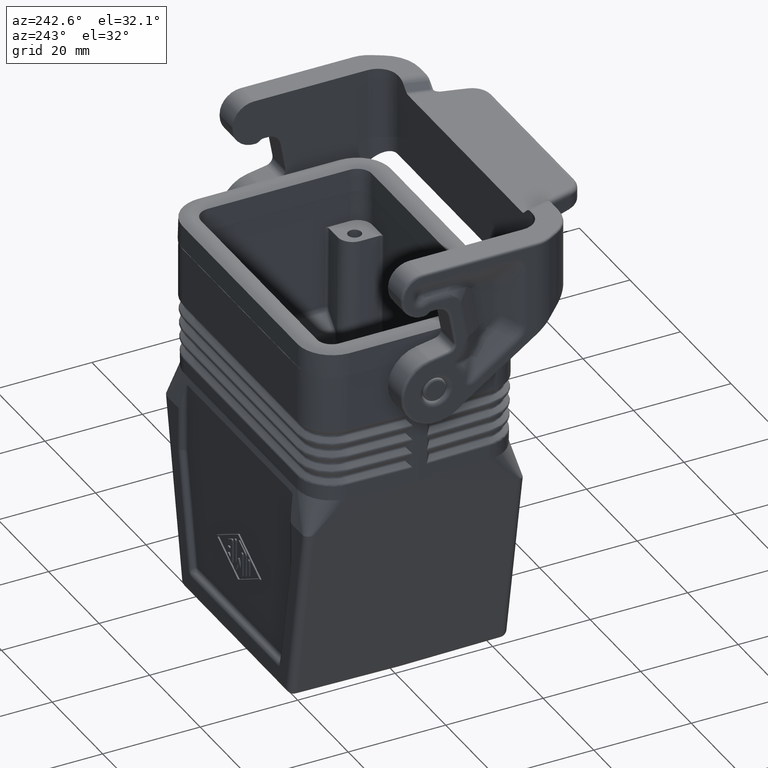
[diagram: clean part render]
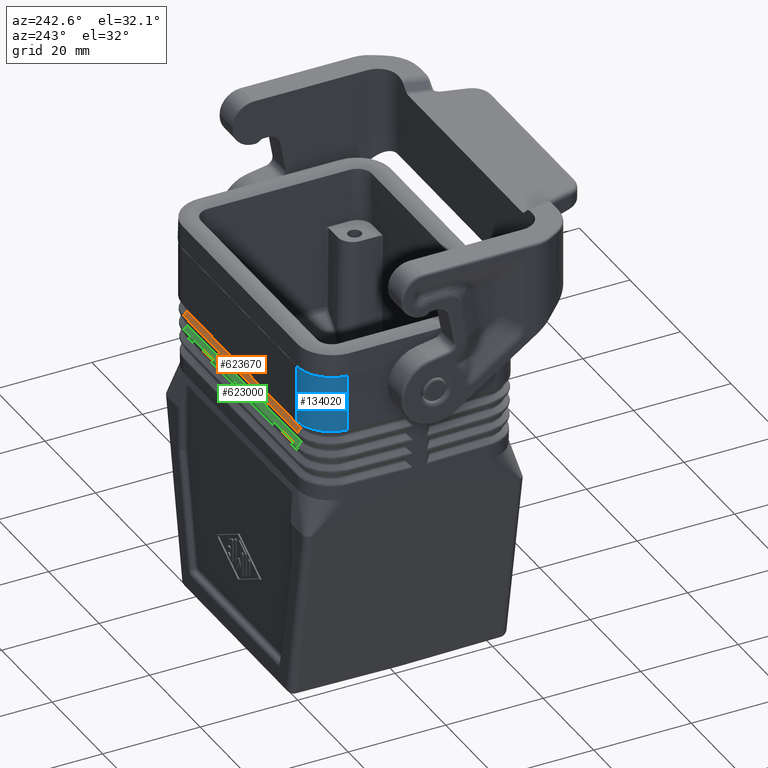
[diagram: same view with three faces highlighted in distinct colors, each labeled with its STEP entity id]
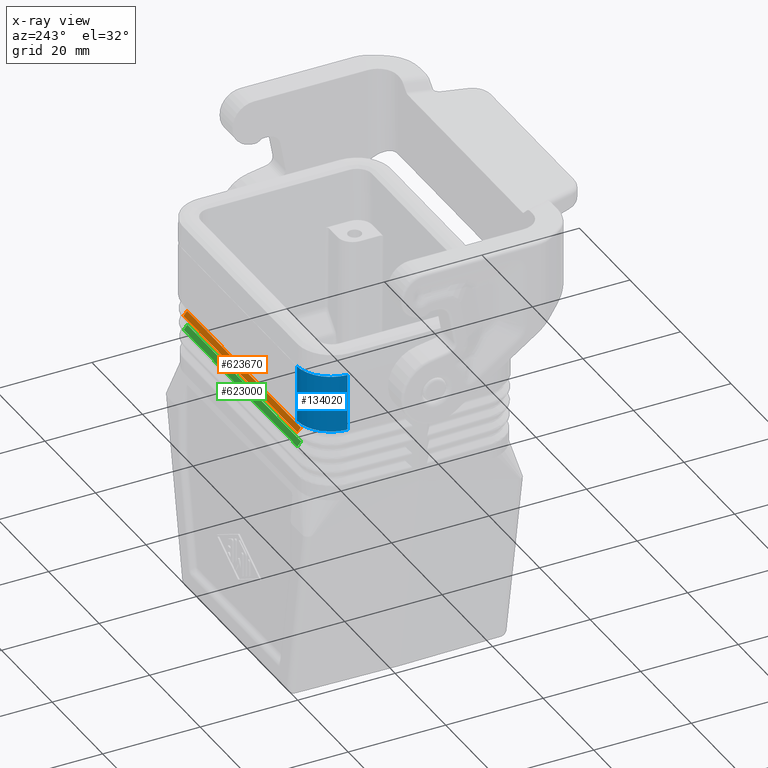
[diagram: x-ray of the same camera — body ghosted, the three highlighted faces saturated]
A machine part, auxiliary view with three faces highlighted in distinct colors.
The next image is the same camera in x-ray (body ghosted, the three faces saturated) — at least one of them is partly hidden behind the body in this view.
Their STEP definitions:

[orange] entity #623670 — the highlighted planar face has unit normal (0, 0.7569, 0.6536).
#93150=CARTESIAN_POINT('',(28.778833089458,72.8273900275017,
13.8268282147115));
#93160=VERTEX_POINT('',#93150);
#120430=CARTESIAN_POINT('',(28.0480229843983,72.8273900275017,
14.6731717852885));
#120440=VERTEX_POINT('',#120430);
#120960=CARTESIAN_POINT('',(28.778833089458,72.8273900275017,
13.8268282147115));
#120970=DIRECTION('',(-0.653556874382687,0.,0.756877408796915));
#120980=VECTOR('',#120970,1.);
#120990=LINE('',#120960,#120980);
#121000=EDGE_CURVE('',#93160,#120440,#120990,.T.);
#197290=CARTESIAN_POINT('',(28.778833089458,27.7926099724983,
13.8268282147115));
#197300=VERTEX_POINT('',#197290);
#252830=CARTESIAN_POINT('',(28.0480229843983,27.7926099724983,
14.6731717852885));
#252840=VERTEX_POINT('',#252830);
#263340=CARTESIAN_POINT('',(28.778833089458,27.7926099724983,
13.8268282147115));
#263350=DIRECTION('',(-0.653556874382687,2.62594601895301E-16,
0.756877408796915));
#263360=VECTOR('',#263350,1.);
#263370=LINE('',#263340,#263360);
#263380=EDGE_CURVE('',#197300,#252840,#263370,.T.);
#622490=CARTESIAN_POINT('',(28.778833089458,50.31,13.8268282147115));
#622500=DIRECTION('',(0.,1.,0.));
#622510=VECTOR('',#622500,1.);
#622520=LINE('',#622490,#622510);
#622530=EDGE_CURVE('',#197300,#93160,#622520,.T.);
#623510=CARTESIAN_POINT('',(28.0480229843983,50.31,14.6731717852885));
#623520=DIRECTION('',(-0.756877408796915,-0.,-0.653556874382687));
#623530=DIRECTION('',(0.653556874382687,0.,-0.756877408796915));
#623540=AXIS2_PLACEMENT_3D('',#623510,#623520,#623530);
#623550=PLANE('',#623540);
#623560=ORIENTED_EDGE('',*,*,#263380,.T.);
#623570=ORIENTED_EDGE('',*,*,#622530,.F.);
#623580=ORIENTED_EDGE('',*,*,#121000,.F.);
#623590=CARTESIAN_POINT('',(28.0480229843983,50.31,14.6731717852885));
#623600=DIRECTION('',(0.,1.,0.));
#623610=VECTOR('',#623600,1.);
#623620=LINE('',#623590,#623610);
#623630=EDGE_CURVE('',#252840,#120440,#623620,.T.);
#623640=ORIENTED_EDGE('',*,*,#623630,.T.);
#623650=EDGE_LOOP('',(#623640,#623580,#623570,#623560));
#623660=FACE_OUTER_BOUND('',#623650,.T.);
#623670=ADVANCED_FACE('',(#623660),#623550,.T.);

[blue] entity #134020 — the highlighted cylindrical surface (partial cylindrical patch) has radius 7 mm, axis along (-0, 0, -1).
#79110=CARTESIAN_POINT('',(34.875144273125,72.9268080158617,12.));
#79120=DIRECTION('',(0.017449886495949,-0.0169928755317915,
0.999703327814027));
#79130=DIRECTION('',(-0.999847695156391,0.,0.0174524064372835));
#79140=AXIS2_PLACEMENT_3D('',#79110,#79120,#79130);
#79150=CYLINDRICAL_SURFACE('',#79140,7.);
#82450=CARTESIAN_POINT('',(49.3740779768177,80.31,12.));
#82460=DIRECTION('',(0.0261769483078731,-0.999505072323015,
-0.017446425933481));
#82470=DIRECTION('',(5.42101086242752E-20,0.0174524064372835,
-0.999847695156391));
#82480=AXIS2_PLACEMENT_3D('',#82450,#82460,#82470);
#82490=PLANE('',#82480);
#83290=CARTESIAN_POINT('',(34.6897154525482,79.92547634433,
11.9966494878841));
#83300=VERTEX_POINT('',#83290);
#83330=CARTESIAN_POINT('',(34.8740779768177,72.9279045898107,0.));
#83340=DIRECTION('',(0.,0.,1.));
#83350=DIRECTION('',(-1.,0.,0.));
#83360=AXIS2_PLACEMENT_3D('',#83330,#83340,#83350);
#83370=CYLINDRICAL_SURFACE('',#83360,7.);
#83380=CARTESIAN_POINT('',(34.6897154520814,79.9254763443176,
11.996649487889));
#83390=CARTESIAN_POINT('',(34.6898091011802,79.925478811657,
11.9966486469948));
#83400=CARTESIAN_POINT('',(34.6899027528012,79.9254812771817,
11.9966479138365));
#83410=CARTESIAN_POINT('',(34.6899964065748,79.9254837408814,
11.9966472884727));
#83420=CARTESIAN_POINT('',(34.6900900603483,79.9254862045811,
11.9966466631089));
#83430=CARTESIAN_POINT('',(34.6901837162744,79.9254886664567,
11.9966461454381));
#83440=CARTESIAN_POINT('',(34.6902773739831,79.9254911264968,
11.9966457356387));
#83450=CARTESIAN_POINT('',(34.6903710316918,79.9254935865369,
11.9966453258393));
#83460=CARTESIAN_POINT('',(34.6904646911828,79.9254960447437,
11.9966450236578));
#83470=CARTESIAN_POINT('',(34.6905583520863,79.9254985011042,
11.99664482945));
#83480=CARTESIAN_POINT('',(34.6906520129896,79.9255009574648,
11.9966446352421));
#83490=CARTESIAN_POINT('',(34.6907456753054,79.9255034119832,
11.9966445485486));
#83500=CARTESIAN_POINT('',(34.6908393386626,79.9255058646445,
11.9966445699527));
#83510=B_SPLINE_CURVE_WITH_KNOTS('',3,(#83380,#83390,#83400,#83410,
#83420,#83430,#83440,#83450,#83460,#83470,#83480,#83490,#83500),
.UNSPECIFIED.,.F.,.F.,(4,3,3,3,4),(0.,0.000281060507338666,
0.000562129320991319,0.000843205708055589,0.00112428893416138),
.UNSPECIFIED.);
#83520=SURFACE_CURVE('',#83510,(#82490,#83370),.CURVE_3D.);
#83530=CARTESIAN_POINT('',(34.6908393386626,79.9255058646445,
11.9966445699521));
#83540=VERTEX_POINT('',#83530);
#83550=EDGE_CURVE('',#83300,#83540,#83520,.T.);
#86480=CARTESIAN_POINT('',(28.0073805792973,72.9343763102407,
12.3390453344444));
#86490=CARTESIAN_POINT('',(28.0073867938181,72.946151935427,
12.3388570043973));
#86500=CARTESIAN_POINT('',(28.0074233140748,72.9579276066551,
12.3386691880856));
#86510=CARTESIAN_POINT('',(28.0076643955105,73.0004433281118,
12.3379927441534));
#86520=CARTESIAN_POINT('',(28.0080450516387,73.0311824484916,
12.3375069932632));
#86530=CARTESIAN_POINT('',(28.0108967471437,73.1805005584979,
12.3351635366775));
#86540=CARTESIAN_POINT('',(28.0162324173983,73.2990064050875,
12.3333530500388));
#86550=CARTESIAN_POINT('',(28.058269691455,73.8909643971901,
12.3245572559853));
#86560=CARTESIAN_POINT('',(28.1409369030414,74.3598583598773,
12.3183876969683));
#86570=CARTESIAN_POINT('',(28.4267171804506,75.3605688610072,
12.3070117503292));
#86580=CARTESIAN_POINT('',(28.6487841669046,75.8833797464278,
12.3022584461101));
#86590=CARTESIAN_POINT('',(29.0743630801009,76.617776053876,
12.2974598571481));
#86600=CARTESIAN_POINT('',(29.2310861666725,76.8533244983965,
12.2962556778441));
#86610=CARTESIAN_POINT('',(29.57231479454,77.303354984117,
12.2946478889433));
#86620=CARTESIAN_POINT('',(29.7568206811785,77.5178367620292,
12.2942438770723));
#86630=CARTESIAN_POINT('',(30.1516658017068,77.9231597495754,
12.2942461570565));
#86640=CARTESIAN_POINT('',(30.3612427457682,78.1132184562106,
12.2946524446265));
#86650=CARTESIAN_POINT('',(30.802183818343,78.4661139048612,
12.2962647461681));
#86660=CARTESIAN_POINT('',(31.0335476745818,78.628950985244,
12.2974711624607));
#86670=CARTESIAN_POINT('',(31.7565482789812,79.0736138781571,
12.3022763609774));
#86680=CARTESIAN_POINT('',(32.273364973306,79.3092944070112,
12.30703390242));
#86690=CARTESIAN_POINT('',(33.2662598340417,79.6211836542352,
12.3184172601706));
#86700=CARTESIAN_POINT('',(33.7328397725468,79.7161016739426,
12.324590101301));
#86710=CARTESIAN_POINT('',(34.3235083933905,79.7736235232263,
12.333389713442));
#86720=CARTESIAN_POINT('',(34.4418367683663,79.7820600096868,
12.3352009484512));
#86730=CARTESIAN_POINT('',(34.5910268875024,79.7888196386862,
12.3375452375058));
#86740=CARTESIAN_POINT('',(34.6217405101335,79.7900047267817,
12.3380310859314));
#86750=CARTESIAN_POINT('',(34.6642304432864,79.7913586845656,
12.3387076935268));
#86760=CARTESIAN_POINT('',(34.6760012161321,79.7917034967866,
12.3388955781081));
#86770=CARTESIAN_POINT('',(34.6877727364093,79.7920180119864,
12.3390839762601));
#86780=CARTESIAN_POINT('',(27.9228143735796,72.9328110235537,
12.247791780566));
#86790=CARTESIAN_POINT('',(27.9228215221522,72.9447385060728,
12.2476071851211));
#86800=CARTESIAN_POINT('',(27.9228593651046,72.9566586204581,
12.2474231997388));
#86810=CARTESIAN_POINT('',(27.923106591873,72.9997073539234,
12.2467603570133));
#86820=CARTESIAN_POINT('',(27.9234942634889,73.0308322800496,
12.2462843747914));
#86830=CARTESIAN_POINT('',(27.9263925078215,73.1820239877275,
12.2439880069587));
#86840=CARTESIAN_POINT('',(27.9318039872762,73.3020237640608,
12.2422137839143));
#86850=CARTESIAN_POINT('',(27.9744058898834,73.9013798751859,
12.2335933288279));
#86860=CARTESIAN_POINT('',(28.058157282501,74.3762328119101,
12.2275463846303));
#86870=CARTESIAN_POINT('',(28.3475359216486,75.3893553624842,
12.2163969025583));
#86880=CARTESIAN_POINT('',(28.572467404967,75.9188474619117,
12.2117370577786));
#86890=CARTESIAN_POINT('',(29.0033439429296,76.6623332953528,
12.2070380246084));
#86900=CARTESIAN_POINT('',(29.1620477682461,76.9008476781421,
12.2058543058571));
#86910=CARTESIAN_POINT('',(29.5075843681147,77.3565473499718,
12.2042783125087));
#86920=CARTESIAN_POINT('',(29.6944171641029,77.5737318526224,
12.2038856923612));
#86930=CARTESIAN_POINT('',(30.0941564121851,77.9840788570505,
12.2038879266992));
#86940=CARTESIAN_POINT('',(30.3063742171261,78.1765344528215,
12.2042827774959));
#86950=CARTESIAN_POINT('',(30.7528697149044,78.5338848585649,
12.205863194085));
#86960=CARTESIAN_POINT('',(30.9871466210096,78.6987796694349,
12.2070491054593));
#86970=CARTESIAN_POINT('',(31.7190949023346,79.1489764052432,
12.2117546153293));
#86980=CARTESIAN_POINT('',(32.2425155083661,79.3876954150312,
12.2164186136437));
#86990=CARTESIAN_POINT('',(33.2477240674196,79.7035068755465,
12.2275753560889));
#87000=CARTESIAN_POINT('',(33.7202326981045,79.7996647714449,
12.2336255163256));
#87010=CARTESIAN_POINT('',(34.3182823001423,79.8579447744054,
12.24224971095));
#87020=CARTESIAN_POINT('',(34.4381021459151,79.8664961605893,
12.2440246670197));
#87030=CARTESIAN_POINT('',(34.5891639769126,79.8733513738765,
12.2463218500887));
#87040=CARTESIAN_POINT('',(34.6202630270983,79.8745535734917,
12.2467979277816));
#87050=CARTESIAN_POINT('',(34.6632855677052,79.8759276281513,
12.2474609307353));
#87060=CARTESIAN_POINT('',(34.6752007008555,79.8762775446423,
12.2476449829544));
#87070=CARTESIAN_POINT('',(34.6871240034252,79.8765969697055,
12.2478296451145));
#87080=CARTESIAN_POINT('',(27.876388525783,72.9308491829523,
12.1323712615706));
#87090=CARTESIAN_POINT('',(27.8763926674561,72.9428554027959,
12.1321922291606));
#87100=CARTESIAN_POINT('',(27.8764276526543,72.9548619465273,
12.1320136824897));
#87110=CARTESIAN_POINT('',(27.8766654205079,72.998211563472,
12.1313706226886));
#87120=CARTESIAN_POINT('',(27.8770477982669,73.0295536462465,
12.1309088399973));
#87130=CARTESIAN_POINT('',(27.8799277422948,73.1818006948828,
12.1286809941229));
#87140=CARTESIAN_POINT('',(27.8853468055974,73.3026328532276,
12.1269597559746));
#87150=CARTESIAN_POINT('',(27.9281059811703,73.9062131909184,
12.1185970647714));
#87160=CARTESIAN_POINT('',(28.0123237920394,74.3843274039847,
12.1127306239563));
#87170=CARTESIAN_POINT('',(28.3036028353768,75.404770164352,
12.1019118948298));
#87180=CARTESIAN_POINT('',(28.5299811620058,75.9378735617766,
12.0973912989729));
#87190=CARTESIAN_POINT('',(28.9639056275926,76.6867790479719,
12.0928275256948));
#87200=CARTESIAN_POINT('',(29.1237017516827,76.9269736762872,
12.091681854763));
#87210=CARTESIAN_POINT('',(29.471634973127,77.3858764031655,
12.0901523499682));
#87220=CARTESIAN_POINT('',(29.6597720538874,77.6045845101464,
12.089768442673));
#87230=CARTESIAN_POINT('',(30.0624078785123,78.0179049043286,
12.0897706114249));
#87240=CARTESIAN_POINT('',(30.2761146356467,78.2117042034879,
12.0901566831882));
#87250=CARTESIAN_POINT('',(30.7257493722721,78.571534217226,
12.0916904801665));
#87260=CARTESIAN_POINT('',(30.9616773606408,78.7375649154011,
12.0928382788231));
#87270=CARTESIAN_POINT('',(31.6989636556924,79.1909503386447,
12.0974083380588));
#87280=CARTESIAN_POINT('',(32.2259564393301,79.4312101811663,
12.1019329625825));
#87290=CARTESIAN_POINT('',(33.2384329853224,79.749112960345,
12.1127587358761));
#87300=CARTESIAN_POINT('',(33.7141896156933,79.845822456434,
12.1186282952586));
#87310=CARTESIAN_POINT('',(34.3164579305629,79.9043702088367,
12.1269946125632));
#87320=CARTESIAN_POINT('',(34.4371096847289,79.9129509554539,
12.128716561394));
#87330=CARTESIAN_POINT('',(34.5892269450642,79.9198154866092,
12.1309451975719));
#87340=CARTESIAN_POINT('',(34.6205431779224,79.9210180761067,
12.1314070727581));
#87350=CARTESIAN_POINT('',(34.6638667079404,79.9223905483886,
12.1320502878258));
#87360=CARTESIAN_POINT('',(34.675868315255,79.9227398697127,
12.1322288993083));
#87370=CARTESIAN_POINT('',(34.6878704064137,79.9230583491567,
12.1324079963728));
#87380=CARTESIAN_POINT('',(27.8742173529149,72.9287488720684,
12.0079848512602));
#87390=CARTESIAN_POINT('',(27.8742143200437,72.9407627335036,
12.0078110981866));
#87400=CARTESIAN_POINT('',(27.8742422027123,72.9527765148272,
12.0076378162836));
#87410=CARTESIAN_POINT('',(27.8744545090095,72.9961530877176,
12.0070137222631));
#87420=CARTESIAN_POINT('',(27.8748187179288,73.0275149240475,
12.0065655596882));
#87430=CARTESIAN_POINT('',(27.8776117268975,73.1798606039974,
12.0044034068048));
#87440=CARTESIAN_POINT('',(27.8829654905486,73.300769004863,
12.0027329914445));
#87450=CARTESIAN_POINT('',(27.9254225897934,73.9047899190462,
11.9946168187159));
#87460=CARTESIAN_POINT('',(28.0094707067672,74.3832848584292,
11.9889231374135));
#87470=CARTESIAN_POINT('',(28.300554735366,75.404598952278,
11.9784229759381));
#87480=CARTESIAN_POINT('',(28.5269644891505,75.9382377518247,
11.9740350312049));
#87490=CARTESIAN_POINT('',(28.9610810371862,76.6878315593938,
11.9696051518183));
#87500=CARTESIAN_POINT('',(29.1209792208601,76.9282587158199,
11.9684933978588));
#87510=CARTESIAN_POINT('',(29.469167492853,77.3875969275472,
11.9670086711011));
#87520=CARTESIAN_POINT('',(29.6574575681014,77.6065079927574,
11.9666356986995));
#87530=CARTESIAN_POINT('',(30.0604252435645,78.0201689223897,
11.9666378036607));
#87540=CARTESIAN_POINT('',(30.2743309360432,78.2141264110301,
11.9670128770018));
#87550=CARTESIAN_POINT('',(30.7243944181391,78.5742226462803,
11.9685017699563));
#87560=CARTESIAN_POINT('',(30.9605522180324,78.7403613800481,
11.969615589172));
#87570=CARTESIAN_POINT('',(31.6985216474027,79.1939566012196,
11.9740515695181));
#87580=CARTESIAN_POINT('',(32.2260488310349,79.4342617024597,
11.9784434244247));
#87590=CARTESIAN_POINT('',(33.2394014776725,79.7519920405737,
11.9889504220295));
#87600=CARTESIAN_POINT('',(33.7155430860564,79.848541726398,
11.9946471293758));
#87610=CARTESIAN_POINT('',(34.3182596553618,79.9067988825687,
12.0027668207918));
#87620=CARTESIAN_POINT('',(34.4389893121995,79.915316316706,
12.0044379256398));
#87630=CARTESIAN_POINT('',(34.5912074151394,79.9220964902704,
12.0066008453066));
#87640=CARTESIAN_POINT('',(34.6225438609546,79.9232814299442,
12.0070490976016));
#87650=CARTESIAN_POINT('',(34.6658949923434,79.9246291481476,
12.0076733422423));
#87660=CARTESIAN_POINT('',(34.6779040183697,79.9249715560888,
12.0078466870278));
#87670=CARTESIAN_POINT('',(34.6899139338855,79.9252830607342,
12.0080205028293));
#87680=(BOUNDED_SURFACE() B_SPLINE_SURFACE(3,3,((#86480,#86780,#87080,
#87380),(#86490,#86790,#87090,#87390),(#86500,#86800,#87100,#87400),(
#86510,#86810,#87110,#87410),(#86520,#86820,#87120,#87420),(#86530,
#86830,#87130,#87430),(#86540,#86840,#87140,#87440),(#86550,#86850,
#87150,#87450),(#86560,#86860,#87160,#87460),(#86570,#86870,#87170,
#87470),(#86580,#86880,#87180,#87480),(#86590,#86890,#87190,#87490),(
#86600,#86900,#87200,#87500),(#86610,#86910,#87210,#87510),(#86620,
#86920,#87220,#87520),(#86630,#86930,#87230,#87530),(#86640,#86940,
#87240,#87540),(#86650,#86950,#87250,#87550),(#86660,#86960,#87260,
#87560),(#86670,#86970,#87270,#87570),(#86680,#86980,#87280,#87580),(
#86690,#86990,#87290,#87590),(#86700,#87000,#87300,#87600),(#86710,
#87010,#87310,#87610),(#86720,#87020,#87320,#87620),(#86730,#87030,
#87330,#87630),(#86740,#87040,#87340,#87640),(#86750,#87050,#87350,
#87650),(#86760,#87060,#87360,#87660),(#86770,#87070,#87370,#87670)),
.UNSPECIFIED.,.F.,.F.,.F.) B_SPLINE_SURFACE_WITH_KNOTS((4,2,2,2,2,2,2,2,
2,2,2,2,2,2,4),(4,4),(0.,0.0357034268289187,0.128909383814384,
0.488510268285718,1.92824865896814,3.64399528683209,4.50184697948793,
5.35969867214378,6.21755010673394,7.0754015413241,8.79114771620123,
10.2309203350837,10.5905298034809,10.6837205972835,10.7194243083611),(0.
,1.),.UNSPECIFIED.) GEOMETRIC_REPRESENTATION_ITEM() 
RATIONAL_B_SPLINE_SURFACE(((1.,0.95609950365261,0.95609950365261,1.),(1.
,0.956103042134195,0.956103042134195,1.),(1.,0.956106557428148,
0.956106557428148,1.),(1.,0.95611919292353,0.95611919292353,1.),(1.,
0.956128270820338,0.956128270820338,1.),(1.,0.956172186404716,
0.956172186404716,1.),(1.,0.956206002305333,0.956206002305333,1.),(1.,
0.956372842268587,0.956372842268587,1.),(1.,0.956487234465406,
0.956487234465406,1.),(1.,0.956699763030546,0.956699763030546,1.),(1.,
0.956787747892259,0.956787747892259,1.),(1.,0.956873424677108,
0.956873424677108,1.),(1.,0.956898644748926,0.956898644748926,1.),(1.,
0.956928345372284,0.956928345372284,1.),(1.,0.956932820931273,
0.956932820931273,1.),(1.,0.956932778761895,0.956932778761895,1.),(1.,
0.956928261207117,0.956928261207117,1.),(1.,0.956898477051632,
0.956898477051632,1.),(1.,0.9568732154582,0.9568732154582,1.),(1.,
0.956787416468468,0.956787416468468,1.),(1.,0.95669935259901,
0.95669935259901,1.),(1.,0.956486685352293,0.956486685352293,1.),(1.,
0.956372231216064,0.956372231216064,1.),(1.,0.956205317744119,
0.956205317744119,1.),(1.,0.956171487560537,0.956171487560537,1.),(1.,
0.956127555964655,0.956127555964655,1.),(1.,0.956118476159618,
0.956118476159618,1.),(1.,0.956105837492101,0.956105837492101,1.),(1.,
0.956102320885894,0.956102320885894,1.),(1.,0.956098781090163,
0.956098781090163,1.))) REPRESENTATION_ITEM('') SURFACE());
#88100=CARTESIAN_POINT('',(27.8836154757431,73.293190807823,
12.0028520301906));
#88110=VERTEX_POINT('',#88100);
#88140=CARTESIAN_POINT('',(27.8836154757431,73.293190807823,
12.0028520301906));
#88150=CARTESIAN_POINT('',(27.8849614805149,73.3189492279868,
12.0030478081687));
#88160=CARTESIAN_POINT('',(27.8864495466604,73.3446953088075,
12.0031944020575));
#88170=CARTESIAN_POINT('',(27.888080543383,73.3704425656316,
12.0033118951765));
#88180=CARTESIAN_POINT('',(27.8897115847989,73.3961905279949,
12.003429391515));
#88190=CARTESIAN_POINT('',(27.8914856626594,73.4219402885307,
12.0035172102863));
#88200=CARTESIAN_POINT('',(27.8934029622683,73.4476894888259,
12.0035850713795));
#88210=CARTESIAN_POINT('',(27.8972375607532,73.499187879574,
12.00372079354));
#88220=CARTESIAN_POINT('',(27.9016451008163,73.5506840955132,
12.0037777852317));
#88230=CARTESIAN_POINT('',(27.9066264755911,73.6021594213529,
12.0037925333485));
#88240=CARTESIAN_POINT('',(27.9116078506415,73.6536347500412,
12.0038072814661));
#88250=CARTESIAN_POINT('',(27.9171630653678,73.7050892311856,
12.0037783969702));
#88260=CARTESIAN_POINT('',(27.9232922009792,73.7565040698987,
12.003722800501));
#88270=CARTESIAN_POINT('',(27.9294213355457,73.8079188998455,
12.0036672040413));
#88280=CARTESIAN_POINT('',(27.9361243916033,73.8592940791463,
12.0035844885473));
#88290=CARTESIAN_POINT('',(27.9434006042271,73.9106106277801,
12.0034840875709));
#88300=CARTESIAN_POINT('',(27.9579530342782,74.0132437589245,
12.0032832855517));
#88310=CARTESIAN_POINT('',(27.9747989228523,74.1156421197104,
12.0030131121363));
#88320=CARTESIAN_POINT('',(27.9939217987827,74.2176530016521,
12.0027125313671));
#88330=CARTESIAN_POINT('',(28.013044662628,74.3196638191252,
12.0024119507879));
#88340=CARTESIAN_POINT('',(28.0344443735597,74.4212862793991,
12.0020796854407));
#88350=CARTESIAN_POINT('',(28.0580904684135,74.5223682254195,
12.0017354552122));
#88360=CARTESIAN_POINT('',(28.0817365667283,74.6234501862347,
12.0013912249334));
#88370=CARTESIAN_POINT('',(28.1076288341772,74.7239907307664,
12.0010345629172));
#88380=CARTESIAN_POINT('',(28.1357232716614,74.8238412625547,
12.0006779884338));
#88390=CARTESIAN_POINT('',(28.1638177377539,74.9236918960197,
12.0003214135872));
#88400=CARTESIAN_POINT('',(28.1941140874519,75.0228516209087,
11.9999621730757));
#88410=CARTESIAN_POINT('',(28.2265558837562,75.1211784036002,
11.9996066641557));
#88420=CARTESIAN_POINT('',(28.2589977427464,75.2195053762844,
11.9992511545489));
#88430=CARTESIAN_POINT('',(28.2935847055736,75.3169985742713,
11.9988999814967));
#88440=CARTESIAN_POINT('',(28.3302496716235,75.4135254603659,
11.9985591204863));
#88450=CARTESIAN_POINT('',(28.3485846198242,75.4617953934162,
11.9983886670632));
#88460=CARTESIAN_POINT('',(28.3674226452617,75.5097842738379,
11.9982208903162));
#88470=CARTESIAN_POINT('',(28.3868211724804,75.5576382559032,
11.9980557685988));
#88480=CARTESIAN_POINT('',(28.4062168572796,75.6054852260397,
11.9978906710763));
#88490=CARTESIAN_POINT('',(28.4261573975354,75.6531557062301,
11.9977283749211));
#88500=CARTESIAN_POINT('',(28.446638092177,75.700631862611,
11.9975693214787));
#88510=CARTESIAN_POINT('',(28.4875994743878,75.795584158978,
11.9972512146488));
#88520=CARTESIAN_POINT('',(28.5307222408603,75.8897588525295,
11.9969461566553));
#88530=CARTESIAN_POINT('',(28.5759582887829,75.9830131631985,
11.9966565224569));
#88540=CARTESIAN_POINT('',(28.6211942716832,76.0762673398238,
11.9963668886748));
#88550=CARTESIAN_POINT('',(28.6685431895741,76.1686003097029,
11.9960926101534));
#88560=CARTESIAN_POINT('',(28.7179430228589,76.2598713406423,
11.9958352691279));
#88570=CARTESIAN_POINT('',(28.7673428253279,76.3511423146464,
11.9955779282629));
#88580=CARTESIAN_POINT('',(28.8187931279258,76.4413505388748,
11.9953375030094));
#88590=CARTESIAN_POINT('',(28.8722188397747,76.5303602660257,
11.99511580574));
#88600=CARTESIAN_POINT('',(28.9256445607115,76.6193700083175,
11.994894108433));
#88610=CARTESIAN_POINT('',(28.9810452151323,76.7071804718532,
11.9946910769202));
#88620=CARTESIAN_POINT('',(29.0383339932751,76.7936635267525,
11.9945079791114));
#88630=CARTESIAN_POINT('',(29.0956228269929,76.8801466655478,
11.994324881125));
#88640=CARTESIAN_POINT('',(29.154799257879,76.9653016592201,
11.994161766344));
#88650=CARTESIAN_POINT('',(29.2157666165967,77.0490103335152,
11.9940191040198));
#88660=CARTESIAN_POINT('',(29.2767340847543,77.132719158072,
11.9938764414395));
#88670=CARTESIAN_POINT('',(29.3394919147994,77.2149809878363,
11.9937539824068));
#88680=CARTESIAN_POINT('',(29.403935952701,77.2956896390082,
11.9936518556941));
#88690=CARTESIAN_POINT('',(29.5326777704627,77.4569237701907,
11.9934478340491));
#88700=CARTESIAN_POINT('',(29.6687892671316,77.6127684011632,
11.9933254487597));
#88710=CARTESIAN_POINT('',(29.8119782888736,77.7626896676934,
11.9932904268796));
#88720=CARTESIAN_POINT('',(29.8835556496557,77.8376323445326,
11.9932729201343));
#88730=CARTESIAN_POINT('',(29.9568651742156,77.9110549681549,
11.9932774577258));
#88740=CARTESIAN_POINT('',(30.0318052819576,77.9828422895862,
11.9933035567343));
#88750=CARTESIAN_POINT('',(30.1067453383702,78.0546295618476,
11.9933296557249));
#88760=CARTESIAN_POINT('',(30.183315336449,78.1247808858461,
11.9933773152905));
#88770=CARTESIAN_POINT('',(30.2614026597211,78.1931896171429,
11.9934458932372));
#88780=CARTESIAN_POINT('',(30.3394899916427,78.261598356017,
11.9935144711914));
#88790=CARTESIAN_POINT('',(30.4190939577452,78.328263901721,
11.9936040073411));
#88800=CARTESIAN_POINT('',(30.5000929786964,78.3930903356212,
11.9937130655248));
#88810=CARTESIAN_POINT('',(30.5810920732254,78.4579168284084,
11.9938221238076));
#88820=CARTESIAN_POINT('',(30.6634854960085,78.5209036665561,
11.9939510692129));
#88830=CARTESIAN_POINT('',(30.747145163703,78.5819673376088,
11.9940995788612));
#88840=CARTESIAN_POINT('',(30.8308049764078,78.6430311145053,
11.9942480887668));
#88850=CARTESIAN_POINT('',(30.9157302873289,78.7021712507415,
11.9944161327377));
#88860=CARTESIAN_POINT('',(31.0017893684805,78.7593178776632,
11.9946023460904));
#88870=CARTESIAN_POINT('',(31.0448228206513,78.7878937885776,
11.9946954612306));
#88880=CARTESIAN_POINT('',(31.088122684268,78.8159606362756,
11.9947930657748));
#88890=CARTESIAN_POINT('',(31.1317205635524,78.8435415792971,
11.9948950606991));
#88900=CARTESIAN_POINT('',(31.1753301740958,78.8711299437617,
11.9949970830681));
#88910=CARTESIAN_POINT('',(31.2192810047167,78.8982588731261,
11.9951036177228));
#88920=CARTESIAN_POINT('',(31.2635590148358,78.9249165812252,
11.9952144429913));
#88930=CARTESIAN_POINT('',(31.3521150120071,78.9782319835358,
11.9954360934705));
#88940=CARTESIAN_POINT('',(31.4419801963318,79.0296618279477,
11.9956748249681));
#88950=CARTESIAN_POINT('',(31.5330334491458,79.0791175973494,
11.9959289519877));
#88960=CARTESIAN_POINT('',(31.6240865595952,79.1285732894253,
11.99618307861));
#88970=CARTESIAN_POINT('',(31.7163269827927,79.1760544367824,
11.9964526868059));
#88980=CARTESIAN_POINT('',(31.8096232028032,79.2214820254208,
11.9967356802534));
#88990=CARTESIAN_POINT('',(31.9029193533073,79.2669095802152,
11.99701867349));
#89000=CARTESIAN_POINT('',(31.997270493774,79.3102831559067,
11.9973151137646));
#89010=CARTESIAN_POINT('',(32.0925370875799,79.3515352050857,
11.9976213561936));
#89020=CARTESIAN_POINT('',(32.1878036861823,79.3927872563418,
11.997927598638));
#89030=CARTESIAN_POINT('',(32.2839848973218,79.4319174189516,
11.9982436799987));
#89040=CARTESIAN_POINT('',(32.3809357754061,79.4688710293774,
11.9985636371706));
#89050=CARTESIAN_POINT('',(32.4778867355403,79.5058246710772,
11.9988835946132));
#89060=CARTESIAN_POINT('',(32.5756065052833,79.5406014641098,
11.999207441631));
#89070=CARTESIAN_POINT('',(32.6739475727563,79.5731605070137,
11.9995264902642));
#89080=CARTESIAN_POINT('',(32.7722888036801,79.6057196040333,
11.9998455394277));
#89090=CARTESIAN_POINT('',(32.8712504774859,79.6360607262929,
12.0001599598701));
#89100=CARTESIAN_POINT('',(32.9706855788352,79.6641570627591,
12.0004623716485));
#89110=CARTESIAN_POINT('',(33.0204033572525,79.678205295343,
12.0006135782303));
#89120=CARTESIAN_POINT('',(33.0702385468089,79.6916922906249,
12.0007613656549));
#89130=CARTESIAN_POINT('',(33.1201756227066,79.7046166636866,
12.0009035614562));
#89140=CARTESIAN_POINT('',(33.1701181773168,79.7175424547113,
12.0010457728582));
#89150=CARTESIAN_POINT('',(33.2202251453729,79.7299216497258,
12.0011825946504));
#89160=CARTESIAN_POINT('',(33.270478477497,79.741748486304,
12.0013111231867));
#89170=CARTESIAN_POINT('',(33.3709851998947,79.7654021731456,
12.0015681804083));
#89180=CARTESIAN_POINT('',(33.472077256549,79.7868455146407,
12.0017941115547));
#89190=CARTESIAN_POINT('',(33.5736062076668,79.8060419232437,
12.0019490872324));
#89200=CARTESIAN_POINT('',(33.6243706277403,79.8156401170544,
12.0020265749865));
#89210=CARTESIAN_POINT('',(33.675244117317,79.8246767660719,
12.002085975242));
#89220=CARTESIAN_POINT('',(33.7262078586982,79.8331485530428,
12.0021176198759));
#89230=CARTESIAN_POINT('',(33.7771716041634,79.8416203406927,
12.0021492645124));
#89240=CARTESIAN_POINT('',(33.8282255908033,79.8495272655554,
12.0021535729391));
#89250=CARTESIAN_POINT('',(33.8793510154376,79.8568668694157,
12.0021131618465));
#89260=CARTESIAN_POINT('',(33.9304764311282,79.8642064719921,
12.0020727507609));
#89270=CARTESIAN_POINT('',(33.9816733372366,79.8709787611947,
12.0019890531972));
#89280=CARTESIAN_POINT('',(34.0329228115241,79.8771821053437,
12.0018244968671));
#89290=CARTESIAN_POINT('',(34.0585475513464,79.8802837777424,
12.0017422186935));
#89300=CARTESIAN_POINT('',(34.0841854457615,79.8832432283948,
12.0016393930104));
#89310=CARTESIAN_POINT('',(34.1098340706394,79.8860603262016,
12.0015060149237));
#89320=CARTESIAN_POINT('',(34.135482684515,79.8888774228001,
12.0013726368943));
#89330=CARTESIAN_POINT('',(34.1611420726759,79.8915521707597,
12.0012093559203));
#89340=CARTESIAN_POINT('',(34.1868096106705,79.8940844750056,
12.0009960733675));
#89350=B_SPLINE_CURVE_WITH_KNOTS('',3,(#88140,#88150,#88160,#88170,
#88180,#88190,#88200,#88210,#88220,#88230,#88240,#88250,#88260,#88270,
#88280,#88290,#88300,#88310,#88320,#88330,#88340,#88350,#88360,#88370,
#88380,#88390,#88400,#88410,#88420,#88430,#88440,#88450,#88460,#88470,
#88480,#88490,#88500,#88510,#88520,#88530,#88540,#88550,#88560,#88570,
#88580,#88590,#88600,#88610,#88620,#88630,#88640,#88650,#88660,#88670,
#88680,#88690,#88700,#88710,#88720,#88730,#88740,#88750,#88760,#88770,
#88780,#88790,#88800,#88810,#88820,#88830,#88840,#88850,#88860,#88870,
#88880,#88890,#88900,#88910,#88920,#88930,#88940,#88950,#88960,#88970,
#88980,#88990,#89000,#89010,#89020,#89030,#89040,#89050,#89060,#89070,
#89080,#89090,#89100,#89110,#89120,#89130,#89140,#89150,#89160,#89170,
#89180,#89190,#89200,#89210,#89220,#89230,#89240,#89250,#89260,#89270,
#89280,#89290,#89300,#89310,#89320,#89330,#89340),.UNSPECIFIED.,.F.,.F.,
(4,3,3,3,3,3,3,3,3,3,3,3,3,3,3,3,3,3,3,3,3,3,3,3,3,3,3,3,3,3,3,3,3,3,3,3
,3,3,3,3,4),(0.,0.0773824784073032,0.154813434079172,0.309851680902255,
0.465096691601863,0.620513002679623,0.931710628293668,1.24313628162627,
1.55447201646728,1.8654012374854,2.1756205953316,2.33044327792097,
2.48544796758826,2.79605958223909,3.10722952567508,3.41864853520161,
3.72999914523144,4.04096613649324,4.35124710106022,4.97160146285203,
5.28273973188564,5.59415098527686,5.90551800693135,6.21652502403944,
6.52686824314597,6.68171271605103,6.83664608934177,7.14714688173817,
7.45825153225176,7.7696529955455,8.08103439104558,8.39207948951093,
8.70248322703936,8.857355515073,9.01218078382271,9.32207780832111,
9.47707150081048,9.63204365900025,9.78695679488962,9.86437984754653,
9.94177459270531),.UNSPECIFIED.);
#89360=SURFACE_CURVE('',#89350,(#83370,#87680),.CURVE_3D.);
#89370=CARTESIAN_POINT('',(34.1868096106705,79.8940844750056,
12.0009960733675));
#89380=VERTEX_POINT('',#89370);
#89390=EDGE_CURVE('',#88110,#89380,#89360,.T.);
#89560=CARTESIAN_POINT('',(34.1868096106239,79.894084475001,
12.0009960676879));
#89570=CARTESIAN_POINT('',(34.2287046877827,79.8982177534556,
12.00064799422));
#89580=CARTESIAN_POINT('',(34.2706079488789,79.9019701934765,
12.0002963576152));
#89590=CARTESIAN_POINT('',(34.3125095700268,79.9053425812582,
11.9999412340607));
#89600=CARTESIAN_POINT('',(34.3544112005833,79.9087149697971,
11.9995861104265));
#89610=CARTESIAN_POINT('',(34.396311181894,79.9117073065585,
11.9992274999406));
#89620=CARTESIAN_POINT('',(34.4381999257588,79.9143207185999,
11.9988654782755));
#89630=CARTESIAN_POINT('',(34.4800922454094,79.9169343537322,
11.9985034257069));
#89640=CARTESIAN_POINT('',(34.521948321892,79.9191681100625,
11.9981381837299));
#89650=CARTESIAN_POINT('',(34.5638702174009,79.9210277222886,
11.9977688394727));
#89660=CARTESIAN_POINT('',(34.6057865051868,79.922887085762,
11.9973995446213));
#89670=CARTESIAN_POINT('',(34.6477382403962,79.9243703857109,
11.9970264097669));
#89680=CARTESIAN_POINT('',(34.6897154525482,79.9254763443299,
11.9966494878858));
#89690=B_SPLINE_CURVE_WITH_KNOTS('',3,(#89560,#89570,#89580,#89590,
#89600,#89610,#89620,#89630,#89640,#89650,#89660,#89670,#89680),
.UNSPECIFIED.,.F.,.F.,(4,3,3,3,4),(0.,0.126209226717235,
0.252226124716668,0.378081737935209,0.504012250800574),.UNSPECIFIED.);
#89700=SURFACE_CURVE('',#89690,(#79150,#83370),.CURVE_3D.);
#89710=EDGE_CURVE('',#89380,#83300,#89700,.T.);
#114720=CARTESIAN_POINT('',(27.8740779768177,0.,12.));
#114730=DIRECTION('',(0.999847695156391,0.,-0.0174524064372835));
#114740=DIRECTION('',(0.,-1.,0.));
#114750=AXIS2_PLACEMENT_3D('',#114720,#114730,#114740);
#114760=PLANE('',#114750);
#121690=CARTESIAN_POINT('',(27.8740779768177,0.,12.));
#121700=DIRECTION('',(0.,-1.,0.));
#121710=VECTOR('',#121700,1.);
#121720=LINE('',#121690,#121710);
#121730=CARTESIAN_POINT('',(27.8740779768135,72.9279045898107,
11.9999999995158));
#121740=VERTEX_POINT('',#121730);
#121770=CARTESIAN_POINT('',(27.8740779768177,72.9279045898107,
11.9999999999997));
#121780=CARTESIAN_POINT('',(27.8740779768177,72.9279071466025,
11.9999999999997));
#121790=CARTESIAN_POINT('',(27.8740779768191,72.9279097033953,
12.0000000000803));
#121800=CARTESIAN_POINT('',(27.8740779768219,72.9279122601893,
12.0000000002408));
#121810=CARTESIAN_POINT('',(27.8740779768247,72.9279148169832,
12.0000000004014));
#121820=CARTESIAN_POINT('',(27.8740779768289,72.9279173737783,
12.0000000006418));
#121830=CARTESIAN_POINT('',(27.8740779768345,72.9279199305745,
12.0000000009628));
#121840=CARTESIAN_POINT('',(27.8740779768401,72.9279224873707,
12.0000000012839));
#121850=CARTESIAN_POINT('',(27.8740779768471,72.9279250441679,
12.0000000016845));
#121860=CARTESIAN_POINT('',(27.8740779768555,72.9279276009663,
12.000000002166));
#121870=CARTESIAN_POINT('',(27.8740779768639,72.9279301577646,
12.0000000026476));
#121880=CARTESIAN_POINT('',(27.8740779768737,72.9279327145642,
12.0000000032088));
#121890=CARTESIAN_POINT('',(27.8740779768849,72.9279352713646,
12.0000000038508));
#121900=B_SPLINE_CURVE_WITH_KNOTS('',3,(#121770,#121780,#121790,#121800,
#121810,#121820,#121830,#121840,#121850,#121860,#121870,#121880,#121890)
,.UNSPECIFIED.,.F.,.F.,(4,3,3,3,4),(0.,7.6703785340349E-6,
1.53407636543711E-5,2.30111552076971E-5,3.06815535296564E-5),
.UNSPECIFIED.);
#121910=SURFACE_CURVE('',#121900,(#114760,#83370),.CURVE_3D.);
#121920=CARTESIAN_POINT('',(27.874077976881,72.9279352713647,
12.0000000034038));
#121930=VERTEX_POINT('',#121920);
#121940=EDGE_CURVE('',#121740,#121930,#121910,.T.);
#121960=CARTESIAN_POINT('',(27.8740779768177,72.9288845979181,12.));
#121970=VERTEX_POINT('',#121960);
#121980=EDGE_CURVE('',#121970,#121930,#121720,.T.);
#122180=CARTESIAN_POINT('',(27.8740779768177,72.9279045898107,0.));
#122190=DIRECTION('',(0.,0.,1.));
#122200=VECTOR('',#122190,1.);
#122210=LINE('',#122180,#122200);
#122220=CARTESIAN_POINT('',(27.8740779768177,72.9279045898107,0.25));
#122230=VERTEX_POINT('',#122220);
#122240=EDGE_CURVE('',#122230,#121740,#122210,.T.);
#132740=CARTESIAN_POINT('',(34.6908393386626,79.9255058646396,0.));
#132750=DIRECTION('',(0.,0.,1.));
#132760=VECTOR('',#132750,1.);
#132770=LINE('',#132740,#132760);
#132780=CARTESIAN_POINT('',(34.6908393386626,79.9255058646396,
0.250000000000043));
#132790=VERTEX_POINT('',#132780);
#132800=EDGE_CURVE('',#132790,#83540,#132770,.T.);
#133080=ORIENTED_EDGE('',*,*,#89710,.T.);
#133090=ORIENTED_EDGE('',*,*,#89390,.T.);
#133100=CARTESIAN_POINT('',(27.8740780111183,72.9288845979133,12.));
#133110=CARTESIAN_POINT('',(27.8740932147621,73.0374811552025,
12.0008710161697));
#133120=CARTESIAN_POINT('',(27.8766360247266,73.1460774779434,
12.0017261220925));
#133130=CARTESIAN_POINT('',(27.8867712616229,73.3630346274663,
12.003386428469));
#133140=CARTESIAN_POINT('',(27.8943637215895,73.4713954061198,
12.0041955007074));
#133150=CARTESIAN_POINT('',(27.9145819284252,73.6876467194613,
12.0057690102222));
#133160=CARTESIAN_POINT('',(27.9272076735673,73.79553723724,
12.0065334483695));
#133170=CARTESIAN_POINT('',(27.957465151674,74.0106143607098,
12.0080154355438));
#133180=CARTESIAN_POINT('',(27.9750968822863,74.1178009495664,
12.0087329851864));
#133190=CARTESIAN_POINT('',(28.0153281830124,74.3312380316941,
12.0101191354992));
#133200=CARTESIAN_POINT('',(28.0379277486413,74.4374885085113,
12.0107877366215));
#133210=CARTESIAN_POINT('',(28.0880458171295,74.6488232623101,
12.0120741094417));
#133220=CARTESIAN_POINT('',(28.1155643160778,74.7539075227458,
12.0126918814544));
#133230=CARTESIAN_POINT('',(28.1754606881071,74.9626822268305,
12.0138748832626));
#133240=CARTESIAN_POINT('',(28.2078385563742,75.0663726541706,
12.0144401132865));
#133250=CARTESIAN_POINT('',(28.2773835763005,75.2721350944846,
12.0155164782612));
#133260=CARTESIAN_POINT('',(28.3145507225237,75.3742070913445,
12.0160276133758));
#133270=CARTESIAN_POINT('',(28.3935937658681,75.576511408993,
12.0169943889986));
#133280=CARTESIAN_POINT('',(28.4354696492693,75.6767437168812,
12.0174500297175));
#133290=CARTESIAN_POINT('',(28.5238395421558,75.87515170618,
12.0183045686236));
#133300=CARTESIAN_POINT('',(28.5703335447275,75.9733273720484,
12.0187034669031));
#133310=CARTESIAN_POINT('',(28.6678389938434,76.1674094089708,
12.0194434187946));
#133320=CARTESIAN_POINT('',(28.7188504326697,76.2633157648636,
12.0197844724782));
#133330=CARTESIAN_POINT('',(28.8252802834972,76.4526514306663,
12.0204077773932));
#133340=CARTESIAN_POINT('',(28.8806986871666,76.5460807257418,
12.0206900286833));
#133350=CARTESIAN_POINT('',(28.9958224378076,76.7302598698173,
12.0211949134099));
#133360=CARTESIAN_POINT('',(29.0555277752395,76.8210097047141,
12.0214175469051));
#133370=CARTESIAN_POINT('',(29.1790960853339,76.9996333552863,
12.0218025215205));
#133380=CARTESIAN_POINT('',(29.2429590483187,77.087507156965,
12.0219648626901));
#133390=CARTESIAN_POINT('',(29.3747042838614,77.2601883857521,
12.0222287173941));
#133400=CARTESIAN_POINT('',(29.4425865460675,77.3449957993536,
12.0223302309794));
#133410=CARTESIAN_POINT('',(29.5822233442099,77.5113605417167,
12.0224720331067));
#133420=CARTESIAN_POINT('',(29.6539778692069,77.5929178574416,
12.0225123217034));
#133430=CARTESIAN_POINT('',(29.8012037105408,77.7526056771271,
12.0225314127174));
#133440=CARTESIAN_POINT('',(29.8766750126262,77.8307361710791,
12.022510215241));
#133450=CARTESIAN_POINT('',(30.031170973151,77.9834011682522,
12.022406207648));
#133460=CARTESIAN_POINT('',(30.1101956194852,78.057935659511,
12.0223233976008));
#133470=CARTESIAN_POINT('',(30.2716270851603,78.2032472024376,
12.0220961708944));
#133480=CARTESIAN_POINT('',(30.354033891867,78.2740242427036,
12.0219517543174));
#133490=CARTESIAN_POINT('',(30.5220511654093,78.4116675775553,
12.0216014508792));
#133500=CARTESIAN_POINT('',(30.6076616190799,78.4785338613575,
12.021395564116));
#133510=CARTESIAN_POINT('',(30.7819007406533,78.6082108595257,
12.0209225842204));
#133520=CARTESIAN_POINT('',(30.870529395183,78.6710215633588,
12.0206554911975));
#133530=CARTESIAN_POINT('',(31.0506129181405,78.7924513551194,
12.0200604871736));
#133540=CARTESIAN_POINT('',(31.1420677724592,78.8510704335364,
12.019732576308));
#133550=CARTESIAN_POINT('',(31.3276055815596,78.9639900206038,
12.0190164456726));
#133560=CARTESIAN_POINT('',(31.4216885218485,79.0182905203419,
12.0186282260619));
#133570=CARTESIAN_POINT('',(31.6122786944773,79.1224553542644,
12.017792103299));
#133580=CARTESIAN_POINT('',(31.7087859118877,79.1723196802934,
12.0173442003371));
#133590=CARTESIAN_POINT('',(31.9040157208698,79.2675042544563,
12.0163894465792));
#133600=CARTESIAN_POINT('',(32.002738300301,79.312824488677,
12.0158825959269));
#133610=CARTESIAN_POINT('',(32.2021848472275,79.3988226666387,
12.0148107884688));
#133620=CARTESIAN_POINT('',(32.3029087991039,79.43950060365,
12.0142458319362));
#133630=CARTESIAN_POINT('',(32.5061399079805,79.5161261169553,
12.0130587511577));
#133640=CARTESIAN_POINT('',(32.6086470491141,79.5520736871331,
12.012436627243));
#133650=CARTESIAN_POINT('',(32.8152224898406,79.6191606454381,
12.0111362384022));
#133660=CARTESIAN_POINT('',(32.9192907732624,79.6503000283182,
12.0104579738842));
#133670=CARTESIAN_POINT('',(33.1287631044925,79.7077032184935,
12.0090464075434));
#133680=CARTESIAN_POINT('',(33.2341671362514,79.7339670200424,
12.0083131062132));
#133690=CARTESIAN_POINT('',(33.4460826284751,79.7815622012217,
12.0067926338488));
#133700=CARTESIAN_POINT('',(33.5525940723592,79.8028935771311,
12.0060054634554));
#133710=CARTESIAN_POINT('',(33.7664936897309,79.8405777582303,
12.0043784668709));
#133720=CARTESIAN_POINT('',(33.8738818465153,79.8569305603168,
12.0035386415005));
#133730=CARTESIAN_POINT('',(34.0893022907195,79.8846222297367,
12.0018075736716));
#133740=CARTESIAN_POINT('',(34.1973345612956,79.8959610949045,
12.0009163322883));
#133750=CARTESIAN_POINT('',(34.3055719044538,79.9047807421934,
12.0000000000004));
#133760=B_SPLINE_CURVE_WITH_KNOTS('',3,(#133100,#133110,#133120,#133130,
#133140,#133150,#133160,#133170,#133180,#133190,#133200,#133210,#133220,
#133230,#133240,#133250,#133260,#133270,#133280,#133290,#133300,#133310,
#133320,#133330,#133340,#133350,#133360,#133370,#133380,#133390,#133400,
#133410,#133420,#133430,#133440,#133450,#133460,#133470,#133480,#133490,
#133500,#133510,#133520,#133530,#133540,#133550,#133560,#133570,#133580,
#133590,#133600,#133610,#133620,#133630,#133640,#133650,#133660,#133670,
#133680,#133690,#133700,#133710,#133720,#133730,#133740,#133750),
.UNSPECIFIED.,.F.,.F.,(4,2,2,2,2,2,2,2,2,2,2,2,2,2,2,2,2,2,2,2,2,2,2,2,2
,2,2,2,2,2,2,2,4),(0.,0.296508814875505,0.593017629751011,
0.889526444626516,1.18603525950202,1.48254399230409,1.77905272510616,
2.07556145790823,2.37207019071029,2.66857844771765,2.96508670472501,
3.26159496173236,3.55810321873972,3.85461147574708,4.15111973275444,
4.44762798976179,4.74413624676915,5.04064428700586,5.33715232724257,
5.63366036747928,5.930168407716,6.22667644795271,6.52318448818942,
6.81969252842613,7.11620056866284,7.41270903157834,7.70921749449385,
8.00572595740935,8.30223442032486,8.59874296116437,8.89525150200389,
9.19176004284341,9.48826858368293),.UNSPECIFIED.);
#133770=EDGE_CURVE('',#121970,#88110,#133760,.T.);
#133780=ORIENTED_EDGE('',*,*,#133770,.T.);
#133790=ORIENTED_EDGE('',*,*,#121980,.F.);
#133800=ORIENTED_EDGE('',*,*,#121940,.T.);
#133810=ORIENTED_EDGE('',*,*,#122240,.T.);
#133820=CARTESIAN_POINT('',(34.8740779768177,72.9279045898107,0.25));
#133830=DIRECTION('',(0.,0.,-1.));
#133840=DIRECTION('',(-1.,0.,0.));
#133850=AXIS2_PLACEMENT_3D('',#133820,#133830,#133840);
#133860=CIRCLE('',#133850,7.);
#133870=CARTESIAN_POINT('',(28.007132118918,74.286232453279,
0.250000000000041));
#133880=VERTEX_POINT('',#133870);
#133890=EDGE_CURVE('',#122230,#133880,#133860,.T.);
#133900=ORIENTED_EDGE('',*,*,#133890,.F.);
#133910=CARTESIAN_POINT('',(34.8740779768177,72.9279045898107,
0.250000000000041));
#133920=DIRECTION('',(0.,0.,-1.));
#133930=DIRECTION('',(-1.,0.,0.));
#133940=AXIS2_PLACEMENT_3D('',#133910,#133920,#133930);
#133950=CIRCLE('',#133940,7.);
#133960=EDGE_CURVE('',#133880,#132790,#133950,.T.);
#133970=ORIENTED_EDGE('',*,*,#133960,.F.);
#133980=ORIENTED_EDGE('',*,*,#132800,.F.);
#133990=ORIENTED_EDGE('',*,*,#83550,.T.);
#134000=EDGE_LOOP('',(#133990,#133980,#133970,#133900,#133810,#133800,
#133790,#133780,#133090,#133080));
#134010=FACE_OUTER_BOUND('',#134000,.T.);
#134020=ADVANCED_FACE('',(#134010),#83370,.T.);

[green] entity #623000 — the highlighted planar face has unit normal (0, 0.7569, 0.6536).
#99210=CARTESIAN_POINT('',(28.1003881791829,72.8273900275017,
17.6731717852885));
#99220=VERTEX_POINT('',#99210);
#104550=CARTESIAN_POINT('',(28.8311982842427,27.7926099724983,
16.8268282147115));
#104560=VERTEX_POINT('',#104550);
#117030=CARTESIAN_POINT('',(28.8311982842427,72.8273900275017,
16.8268282147115));
#117040=VERTEX_POINT('',#117030);
#117480=CARTESIAN_POINT('',(28.8311982842427,72.8273900275017,
16.8268282147115));
#117490=DIRECTION('',(-0.653556874382687,0.,0.756877408796916));
#117500=VECTOR('',#117490,1.);
#117510=LINE('',#117480,#117500);
#117520=EDGE_CURVE('',#117040,#99220,#117510,.T.);
#254320=CARTESIAN_POINT('',(28.8311982842427,27.7926099724983,
16.8268282147115));
#254330=DIRECTION('',(-0.653556874382687,2.62594601895301E-16,
0.756877408796916));
#254340=VECTOR('',#254330,1.);
#254350=LINE('',#254320,#254340);
#254360=CARTESIAN_POINT('',(28.1003881791829,27.7926099724983,
17.6731717852885));
#254370=VERTEX_POINT('',#254360);
#254380=EDGE_CURVE('',#104560,#254370,#254350,.T.);
#622200=CARTESIAN_POINT('',(28.8311982842427,50.31,16.8268282147115));
#622210=DIRECTION('',(0.,1.,0.));
#622220=VECTOR('',#622210,1.);
#622230=LINE('',#622200,#622220);
#622240=EDGE_CURVE('',#104560,#117040,#622230,.T.);
#622840=CARTESIAN_POINT('',(28.1003881791829,50.31,17.6731717852885));
#622850=DIRECTION('',(-0.756877408796916,-0.,-0.653556874382687));
#622860=DIRECTION('',(0.653556874382687,0.,-0.756877408796916));
#622870=AXIS2_PLACEMENT_3D('',#622840,#622850,#622860);
#622880=PLANE('',#622870);
#622890=ORIENTED_EDGE('',*,*,#254380,.T.);
#622900=ORIENTED_EDGE('',*,*,#622240,.F.);
#622910=ORIENTED_EDGE('',*,*,#117520,.F.);
#622920=CARTESIAN_POINT('',(28.1003881791829,50.31,17.6731717852885));
#622930=DIRECTION('',(0.,1.,0.));
#622940=VECTOR('',#622930,1.);
#622950=LINE('',#622920,#622940);
#622960=EDGE_CURVE('',#254370,#99220,#622950,.T.);
#622970=ORIENTED_EDGE('',*,*,#622960,.T.);
#622980=EDGE_LOOP('',(#622970,#622910,#622900,#622890));
#622990=FACE_OUTER_BOUND('',#622980,.T.);
#623000=ADVANCED_FACE('',(#622990),#622880,.T.);